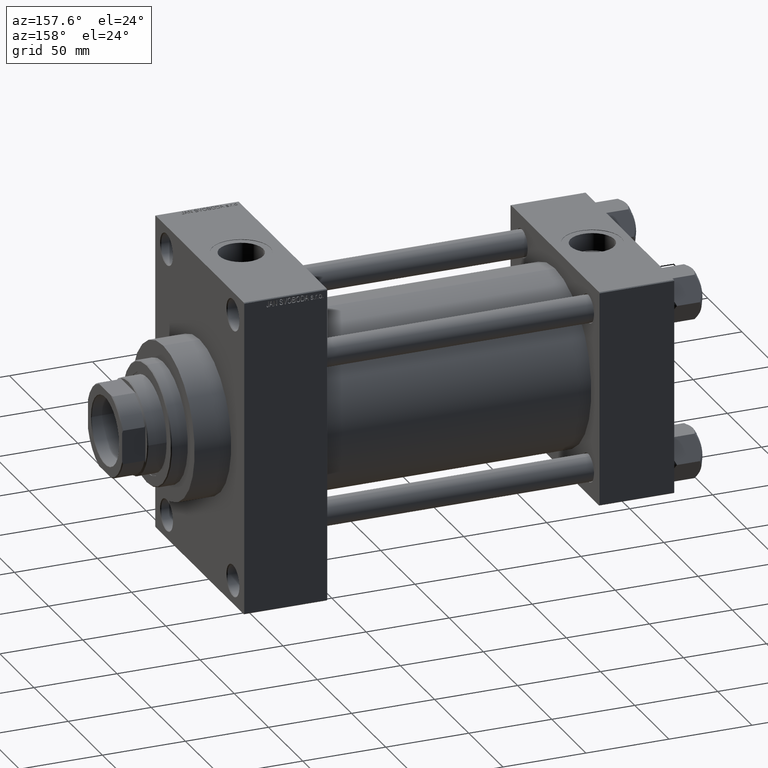
[diagram: clean part render]
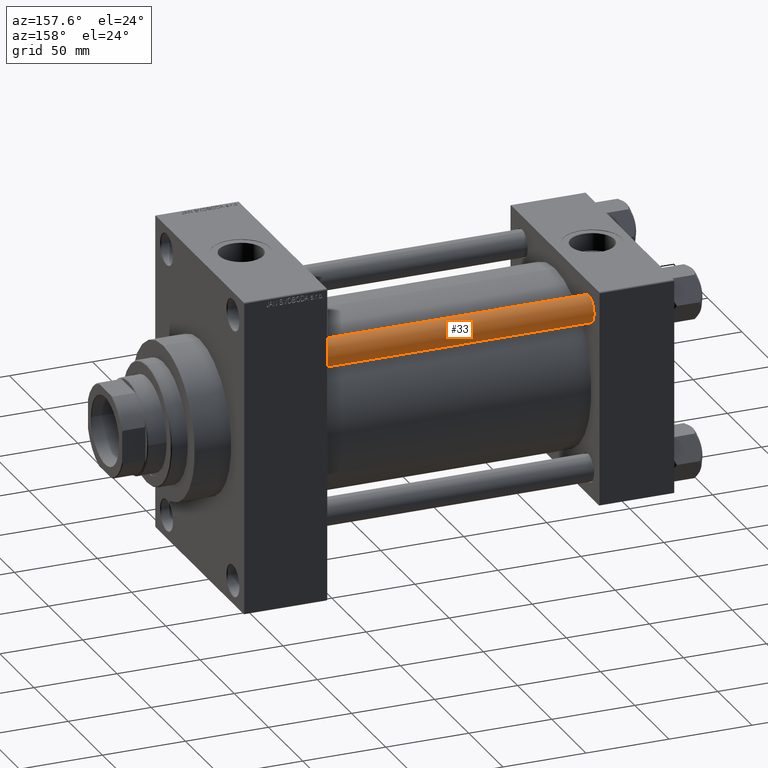
[diagram: same view with one face highlighted and labeled with its STEP entity id]
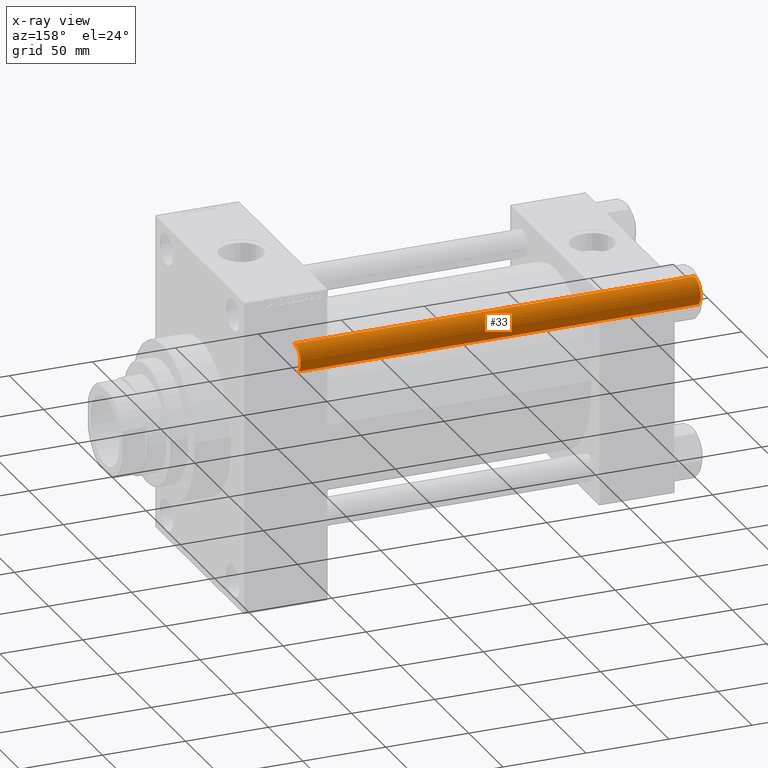
[diagram: x-ray of the same camera — body ghosted, the highlighted face saturated]
A machine part, auxiliary view. The second image highlights one B-rep face of the part: STEP entity #33.
The next image is the same camera in x-ray: the body ghosted, the highlighted face saturated — about 0% of this face is hidden behind the body in this view.
In plain terms, the highlighted cylindrical surface (edge-blend (fillet) strip) has radius 8 mm, axis along (-1, -0, 0).
Its self-contained STEP definition (entity closure, byte-faithful):
#33 = ADVANCED_FACE ( 'NONE', ( #47026 ), #9606, .T. ) ;
#1555 = VERTEX_POINT ( 'NONE', #11463 ) ;
#1758 = AXIS2_PLACEMENT_3D ( 'NONE', #36478, #31684, #13338 ) ;
#2184 = EDGE_CURVE ( 'NONE', #13733, #12674, #28359, .T. ) ;
#2285 = CARTESIAN_POINT ( 'NONE',  ( 8.000000000000000000, 9.797174393178825657E-16, 242.0000000000000000 ) ) ;
#3073 = DIRECTION ( 'NONE',  ( -1.000000000000000000, 0.000000000000000000, 0.000000000000000000 ) ) ;
#6523 = VECTOR ( 'NONE', #12671, 1000.000000000000000 ) ;
#6737 = ORIENTED_EDGE ( 'NONE', *, *, #14786, .F. ) ;
#8709 = CIRCLE ( 'NONE', #1758, 8.000000000000000000 ) ;
#9606 = CYLINDRICAL_SURFACE ( 'NONE', #21228, 8.000000000000000000 ) ;
#10279 = CARTESIAN_POINT ( 'NONE',  ( -8.000000000000000000, 0.000000000000000000, 242.0000000000000000 ) ) ;
#11463 = CARTESIAN_POINT ( 'NONE',  ( -8.000000000000000000, 0.000000000000000000, 0.4999999999999726885 ) ) ;
#12614 = CARTESIAN_POINT ( 'NONE',  ( 8.000000000000000000, 9.797174393178825657E-16, 0.4999999999999726885 ) ) ;
#12671 = DIRECTION ( 'NONE',  ( -0.000000000000000000, -0.000000000000000000, -1.000000000000000000 ) ) ;
#12674 = VERTEX_POINT ( 'NONE', #12614 ) ;
#13338 = DIRECTION ( 'NONE',  ( 1.000000000000000000, 0.000000000000000000, 0.000000000000000000 ) ) ;
#13733 = VERTEX_POINT ( 'NONE', #36622 ) ;
#14786 = EDGE_CURVE ( 'NONE', #19317, #1555, #47701, .T. ) ;
#16107 = VECTOR ( 'NONE', #36816, 1000.000000000000000 ) ;
#16895 = ORIENTED_EDGE ( 'NONE', *, *, #28342, .T. ) ;
#17575 = CARTESIAN_POINT ( 'NONE',  ( 0.000000000000000000, 0.000000000000000000, 242.0000000000000000 ) ) ;
#19317 = VERTEX_POINT ( 'NONE', #36888 ) ;
#19402 = DIRECTION ( 'NONE',  ( 0.000000000000000000, 0.000000000000000000, -1.000000000000000000 ) ) ;
#21228 = AXIS2_PLACEMENT_3D ( 'NONE', #17575, #46551, #3073 ) ;
#22810 = DIRECTION ( 'NONE',  ( 1.000000000000000000, 0.000000000000000000, 0.000000000000000000 ) ) ;
#23281 = CARTESIAN_POINT ( 'NONE',  ( 0.000000000000000000, 0.000000000000000000, 241.4999999999999716 ) ) ;
#24929 = AXIS2_PLACEMENT_3D ( 'NONE', #23281, #19402, #22810 ) ;
#27425 = EDGE_CURVE ( 'NONE', #12674, #1555, #8709, .T. ) ;
#28342 = EDGE_CURVE ( 'NONE', #19317, #13733, #44990, .T. ) ;
#28359 = LINE ( 'NONE', #2285, #6523 ) ;
#31684 = DIRECTION ( 'NONE',  ( -0.000000000000000000, -0.000000000000000000, 1.000000000000000000 ) ) ;
#34421 = ORIENTED_EDGE ( 'NONE', *, *, #27425, .T. ) ;
#36478 = CARTESIAN_POINT ( 'NONE',  ( 0.000000000000000000, 0.000000000000000000, 0.4999999999999726885 ) ) ;
#36622 = CARTESIAN_POINT ( 'NONE',  ( 8.000000000000000000, 9.797174393178825657E-16, 241.4999999999999716 ) ) ;
#36816 = DIRECTION ( 'NONE',  ( -0.000000000000000000, -0.000000000000000000, -1.000000000000000000 ) ) ;
#36888 = CARTESIAN_POINT ( 'NONE',  ( -8.000000000000000000, 0.000000000000000000, 241.4999999999999716 ) ) ;
#38966 = EDGE_LOOP ( 'NONE', ( #16895, #45539, #34421, #6737 ) ) ;
#44990 = CIRCLE ( 'NONE', #24929, 8.000000000000000000 ) ;
#45539 = ORIENTED_EDGE ( 'NONE', *, *, #2184, .T. ) ;
#46551 = DIRECTION ( 'NONE',  ( -0.000000000000000000, -0.000000000000000000, -1.000000000000000000 ) ) ;
#47026 = FACE_OUTER_BOUND ( 'NONE', #38966, .T. ) ;
#47701 = LINE ( 'NONE', #10279, #16107 ) ;